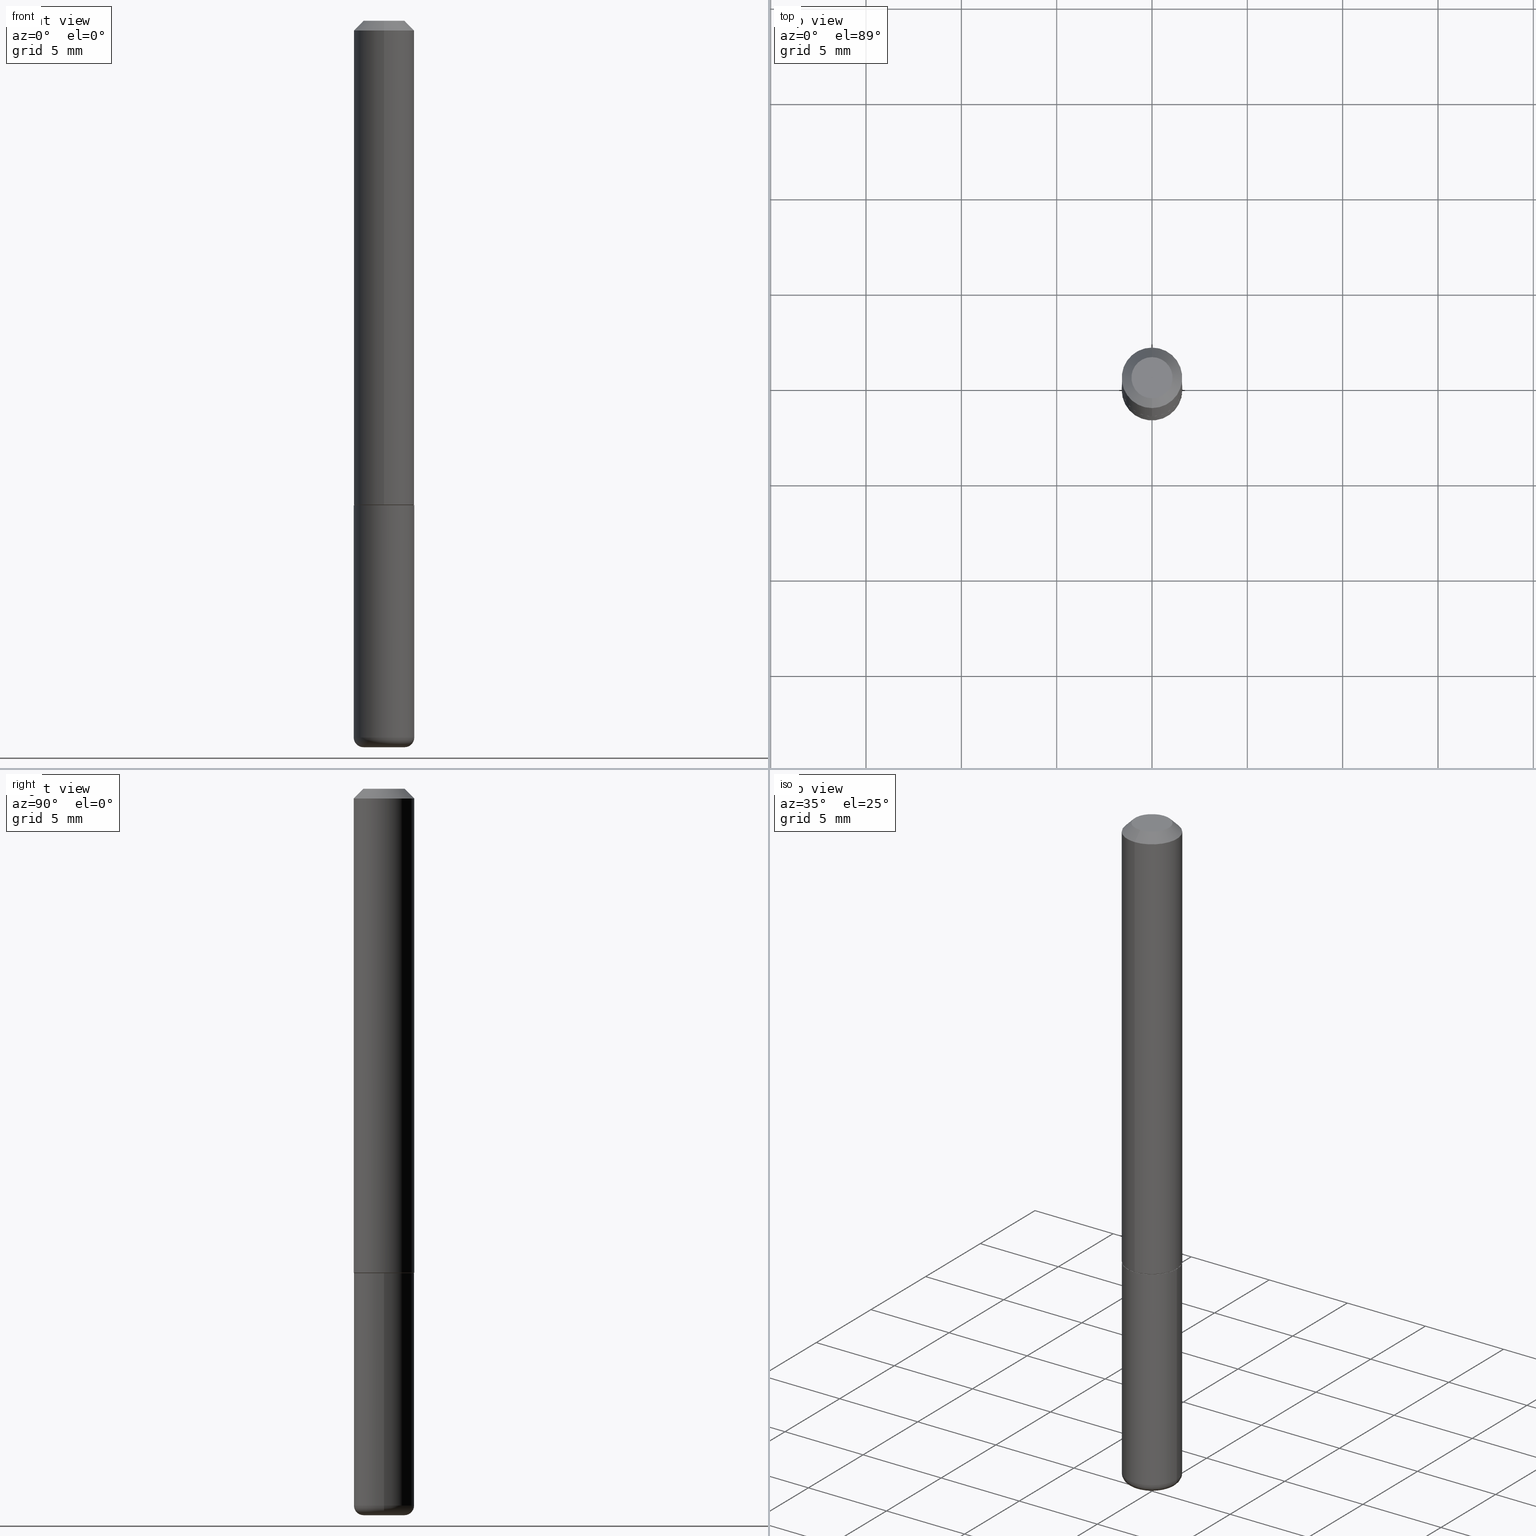
[diagram: canonical four-view strip — front | top / right | iso, engineering-drawing reading convention]
A machine part, canonical four-view strip (front | top / right | iso — engineering-drawing reading convention). The complete STEP part file that produces these views, byte-faithful:
ISO-10303-21;
HEADER;
FILE_DESCRIPTION (( 'STEP AP203' ),
    '1' );
FILE_NAME ('38203.STEP',
    '2024-03-02T18:13:21',
    ( '' ),
    ( '' ),
    'SwSTEP 2.0',
    'SolidWorks 2023',
    '' );
FILE_SCHEMA (( 'CONFIG_CONTROL_DESIGN' ));
ENDSEC;

DATA;
#1 = EDGE_CURVE ( 'NONE', #200, #326, #191, .T. ) ;
#2 = ADVANCED_FACE ( 'NONE', ( #349 ), #384, .F. ) ;
#3 = ORIENTED_EDGE ( 'NONE', *, *, #285, .T. ) ;
#4 = ORIENTED_EDGE ( 'NONE', *, *, #1, .F. ) ;
#5 = CARTESIAN_POINT ( 'NONE',  ( 0.06250000000000001388, -4.364351673553918173E-16, 3.047610484872460571E-30 ) ) ;
#6 = ORIENTED_EDGE ( 'NONE', *, *, #209, .T. ) ;
#7 = EDGE_CURVE ( 'NONE', #206, #258, #208, .T. ) ;
#8 = DIRECTION ( 'NONE',  ( -6.982962677686265922E-15, -1.000000000000000000, 3.551402391763545142E-15 ) ) ;
#9 = DIRECTION ( 'NONE',  ( -2.445468806185136597E-29, 3.491481338843145583E-15, 1.000000000000000000 ) ) ;
#10 =( NAMED_UNIT ( * ) PLANE_ANGLE_UNIT ( ) SI_UNIT ( $, .RADIAN. ) );
#11 = EDGE_LOOP ( 'NONE', ( #392, #325, #314, #395 ) ) ;
#12 = CARTESIAN_POINT ( 'NONE',  ( -4.364351673553682501E-16, -0.06250000000000363598, -0.9989999999999996660 ) ) ;
#13 = AXIS2_PLACEMENT_3D ( 'NONE', #252, #26, #67 ) ;
#14 = PERSON_AND_ORGANIZATION ( #171, #347 ) ;
#15 = APPROVAL ( #341, 'UNSPECIFIED' ) ;
#16 = DIRECTION ( 'NONE',  ( -2.422853900557315141E-29, 3.523867170862678489E-15, 1.000000000000000000 ) ) ;
#17 = AXIS2_PLACEMENT_3D ( 'NONE', #123, #275, #401 ) ;
#18 = CARTESIAN_POINT ( 'NONE',  ( 2.967759138016645800E-16, 0.04249999999999975325, -5.303462480398862614E-17 ) ) ;
#19 = PRODUCT_DEFINITION_SHAPE ( 'NONE', 'NONE',  #130 ) ;
#20 = CARTESIAN_POINT ( 'NONE',  ( 2.445468806185136036E-29, -3.491481338843144399E-15, -0.9999999999999996669 ) ) ;
#21 = CARTESIAN_POINT ( 'NONE',  ( -0.06250000000000001388, 4.440892098500627148E-16, -3.074334431409317165E-30 ) ) ;
#22 = DIRECTION ( 'NONE',  ( 4.937700262164540154E-15, 0.7071067811865440200, -0.7071067811865511255 ) ) ;
#23 = CARTESIAN_POINT ( 'NONE',  ( 4.369837824924861120E-16, 0.06149999999999652273, -1.000000000000000000 ) ) ;
#24 = DATE_AND_TIME ( #107, #58 ) ;
#25 = PERSON_AND_ORGANIZATION_ROLE ( 'creator' ) ;
#26 = DIRECTION ( 'NONE',  ( -2.445468806185136597E-29, 3.491481338843145583E-15, 1.000000000000000000 ) ) ;
#27 = EDGE_CURVE ( 'NONE', #266, #354, #256, .T. ) ;
#28 = CARTESIAN_POINT ( 'NONE',  ( -0.06250000000000001388, -4.723303171637793051E-15, -1.479999999999999982 ) ) ;
#29 = EDGE_LOOP ( 'NONE', ( #112, #71, #359, #292 ) ) ;
#30 = ORIENTED_EDGE ( 'NONE', *, *, #383, .F. ) ;
#31 = CIRCLE ( 'NONE', #127, 0.06150000000000004768 ) ;
#32 = APPLICATION_PROTOCOL_DEFINITION ( 'international standard', 'config_control_design', 1994, #281 ) ;
#33 = EDGE_LOOP ( 'NONE', ( #230, #318, #41, #68 ) ) ;
#34 = PRODUCT_RELATED_PRODUCT_CATEGORY ( 'detail', '', ( #269 ) ) ;
#35 = EDGE_CURVE ( 'NONE', #258, #110, #50, .T. ) ;
#36 = DIMENSIONAL_EXPONENTS ( 1.000000000000000000, 0.000000000000000000, 0.000000000000000000, 0.000000000000000000, 0.000000000000000000, 0.000000000000000000, 0.000000000000000000 ) ;
#37 = CYLINDRICAL_SURFACE ( 'NONE', #265, 0.06250000000000002776 ) ;
#38 = ORIENTED_EDGE ( 'NONE', *, *, #376, .T. ) ;
#39 = APPROVAL_DATE_TIME ( #179, #193 ) ;
#40 = ORIENTED_EDGE ( 'NONE', *, *, #35, .F. ) ;
#41 = ORIENTED_EDGE ( 'NONE', *, *, #320, .F. ) ;
#42 = CC_DESIGN_SECURITY_CLASSIFICATION ( #238, ( #329 ) ) ;
#43 = DIRECTION ( 'NONE',  ( 2.438088387897960049E-29, -3.491481338843145188E-15, -1.000000000000000000 ) ) ;
#44 = FACE_OUTER_BOUND ( 'NONE', #105, .T. ) ;
#45 = DIRECTION ( 'NONE',  ( -2.422853900557315141E-29, 3.523867170862678489E-15, 1.000000000000000000 ) ) ;
#46 = DIRECTION ( 'NONE',  ( -6.982962677686265922E-15, -1.000000000000000000, 3.551402391763545142E-15 ) ) ;
#47 = COORDINATED_UNIVERSAL_TIME_OFFSET ( 5, 0, .BEHIND. ) ;
#48 = DIRECTION ( 'NONE',  ( 2.422853900557314861E-29, -3.523867170862678489E-15, -1.000000000000000000 ) ) ;
#49 = CARTESIAN_POINT ( 'NONE',  ( -0.06250000000000001388, -3.885347650315437417E-15, -0.9999999999999996669 ) ) ;
#50 = CIRCLE ( 'NONE', #174, 0.06250000000000001388 ) ;
#51 = CIRCLE ( 'NONE', #215, 0.06250000000000001388 ) ;
#52 = DIRECTION ( 'NONE',  ( -6.982962677686265922E-15, -1.000000000000000000, 4.442029257990668187E-15 ) ) ;
#53 = APPROVAL ( #315, 'UNSPECIFIED' ) ;
#54 = CARTESIAN_POINT ( 'NONE',  ( 4.845707801114646817E-31, -7.047734341725380940E-17, -0.02000000000000006981 ) ) ;
#55 = LINE ( 'NONE', #59, #339 ) ;
#56 = DIRECTION ( 'NONE',  ( 1.000000000000000000, -6.982962677686276177E-15, 0.000000000000000000 ) ) ;
#57 = AXIS2_PLACEMENT_3D ( 'NONE', #118, #361, #77 ) ;
#58 = LOCAL_TIME ( 13, 13, 21.00000000000000000, #47 ) ;
#59 = CARTESIAN_POINT ( 'NONE',  ( -4.294522046776814963E-16, -0.06150000000000357264, -0.9999999999999994449 ) ) ;
#60 = ADVANCED_BREP_SHAPE_REPRESENTATION ( '38203', ( #378, #244, #195 ), #312 ) ;
#61 = LINE ( 'NONE', #190, #328 ) ;
#62 = PERSON_AND_ORGANIZATION_ROLE ( 'design_owner' ) ;
#63 = DIRECTION ( 'NONE',  ( 1.000000000000000000, -6.982962677686269077E-15, 0.000000000000000000 ) ) ;
#64 = PERSON_AND_ORGANIZATION ( #171, #347 ) ;
#65 = EDGE_CURVE ( 'NONE', #261, #135, #311, .T. ) ;
#66 = VERTEX_POINT ( 'NONE', #146 ) ;
#67 = DIRECTION ( 'NONE',  ( 1.000000000000000000, -6.982962677686258822E-15, 4.883557194083110659E-29 ) ) ;
#68 = ORIENTED_EDGE ( 'NONE', *, *, #352, .F. ) ;
#69 = DIRECTION ( 'NONE',  ( 1.000000000000000000, 0.000000000000000000, 0.000000000000000000 ) ) ;
#70 = EDGE_LOOP ( 'NONE', ( #239, #388, #38, #321 ) ) ;
#71 = ORIENTED_EDGE ( 'NONE', *, *, #1, .T. ) ;
#72 = DIRECTION ( 'NONE',  ( -1.000000000000000000, 6.982962677686265922E-15, -4.876176775795935793E-29 ) ) ;
#73 = CARTESIAN_POINT ( 'NONE',  ( -4.687240070556140497E-45, 6.817254396885214509E-31, 1.934594599153486335E-16 ) ) ;
#74 = EDGE_CURVE ( 'NONE', #135, #261, #136, .T. ) ;
#75 = ORIENTED_EDGE ( 'NONE', *, *, #7, .F. ) ;
#76 = AXIS2_PLACEMENT_3D ( 'NONE', #20, #43, #72 ) ;
#77 = DIRECTION ( 'NONE',  ( -6.982962677686265922E-15, -1.000000000000000000, 4.442029257990668187E-15 ) ) ;
#78 = EDGE_LOOP ( 'NONE', ( #385, #108 ) ) ;
#79 = DIRECTION ( 'NONE',  ( -2.422853900557315141E-29, 3.523867170862678489E-15, 1.000000000000000000 ) ) ;
#80 = ORIENTED_EDGE ( 'NONE', *, *, #65, .T. ) ;
#81 = DIRECTION ( 'NONE',  ( -2.445468806185136877E-29, 3.491481338843145188E-15, 1.000000000000000000 ) ) ;
#82 = AXIS2_PLACEMENT_3D ( 'NONE', #223, #284, #84 ) ;
#83 = PERSON_AND_ORGANIZATION ( #171, #347 ) ;
#84 = DIRECTION ( 'NONE',  ( -6.982962677686265133E-15, -1.000000000000000000, 4.370956789862812472E-15 ) ) ;
#85 = CC_DESIGN_PERSON_AND_ORGANIZATION_ASSIGNMENT ( #407, #346, ( #238 ) ) ;
#86 = AXIS2_PLACEMENT_3D ( 'NONE', #73, #168, #201 ) ;
#87 = FACE_OUTER_BOUND ( 'NONE', #78, .T. ) ;
#88 = DIRECTION ( 'NONE',  ( -2.422853900557315141E-29, 3.523867170862678489E-15, 1.000000000000000000 ) ) ;
#89 = ADVANCED_FACE ( 'NONE', ( #272 ), #287, .T. ) ;
#90 = EDGE_CURVE ( 'NONE', #66, #206, #109, .T. ) ;
#91 = FACE_OUTER_BOUND ( 'NONE', #317, .T. ) ;
#92 = ORIENTED_EDGE ( 'NONE', *, *, #27, .T. ) ;
#93 = CIRCLE ( 'NONE', #57, 0.06150000000000004768 ) ;
#94 = DIRECTION ( 'NONE',  ( -2.422853900557314861E-29, 3.523867170862678489E-15, 1.000000000000000000 ) ) ;
#95 = APPROVAL_ROLE ( '' ) ;
#96 = DIRECTION ( 'NONE',  ( 5.024295867788748699E-15, 0.7071067811866466046, 0.7071067811864484298 ) ) ;
#97 = COORDINATED_UNIVERSAL_TIME_OFFSET ( 5, 0, .BEHIND. ) ;
#98 = DATE_AND_TIME ( #159, #398 ) ;
#99 = ADVANCED_FACE ( 'NONE', ( #247 ), #243, .T. ) ;
#100 = DIRECTION ( 'NONE',  ( 1.000000000000000000, -6.982962677686258822E-15, 4.883557194083110659E-29 ) ) ;
#101 = CIRCLE ( 'NONE', #82, 0.06250000000000012490 ) ;
#102 = AXIS2_PLACEMENT_3D ( 'NONE', #54, #187, #151 ) ;
#103 = ORIENTED_EDGE ( 'NONE', *, *, #276, .T. ) ;
#104 = DIRECTION ( 'NONE',  ( 0.000000000000000000, 0.000000000000000000, 1.000000000000000000 ) ) ;
#105 = EDGE_LOOP ( 'NONE', ( #228, #403, #381, #202 ) ) ;
#106 = CC_DESIGN_PERSON_AND_ORGANIZATION_ASSIGNMENT ( #343, #62, ( #269 ) ) ;
#107 = CALENDAR_DATE ( 2024, 2, 3 ) ;
#108 = ORIENTED_EDGE ( 'NONE', *, *, #360, .T. ) ;
#109 = CIRCLE ( 'NONE', #158, 0.04249999999999999611 ) ;
#110 = VERTEX_POINT ( 'NONE', #368 ) ;
#111 = VECTOR ( 'NONE', #221, 39.37007874015748143 ) ;
#112 = ORIENTED_EDGE ( 'NONE', *, *, #222, .T. ) ;
#113 = ORIENTED_EDGE ( 'NONE', *, *, #351, .F. ) ;
#114 = ADVANCED_FACE ( 'NONE', ( #180 ), #357, .T. ) ;
#115 = COORDINATED_UNIVERSAL_TIME_OFFSET ( 5, 0, .BEHIND. ) ;
#116 = CONICAL_SURFACE ( 'NONE', #227, 0.06150000000000004768, 0.7853981633975849475 ) ;
#117 = LOCAL_TIME ( 13, 13, 21.00000000000000000, #390 ) ;
#118 = CARTESIAN_POINT ( 'NONE',  ( 2.422853900557314300E-29, -3.523867170862677700E-15, -0.9999999999999996669 ) ) ;
#119 = CALENDAR_DATE ( 2024, 2, 3 ) ;
#120 = DIRECTION ( 'NONE',  ( 6.982962677686265922E-15, 1.000000000000000000, -3.523867170862678489E-15 ) ) ;
#121 = DIRECTION ( 'NONE',  ( -4.937700262165222518E-15, -0.7071067811866417196, 0.7071067811864533148 ) ) ;
#122 = PLANE ( 'NONE',  #76 ) ;
#123 = CARTESIAN_POINT ( 'NONE',  ( 0.000000000000000000, 0.000000000000000000, 0.000000000000000000 ) ) ;
#124 = DIRECTION ( 'NONE',  ( -6.982962677686265922E-15, -1.000000000000000000, 3.523867170862678095E-15 ) ) ;
#125 = EDGE_CURVE ( 'NONE', #200, #169, #31, .T. ) ;
#126 = CARTESIAN_POINT ( 'NONE',  ( -4.287811248607198352E-16, -0.06250000000000001388, -0.01999999999999984776 ) ) ;
#127 = AXIS2_PLACEMENT_3D ( 'NONE', #370, #16, #52 ) ;
#128 = DIRECTION ( 'NONE',  ( -2.445468806185136597E-29, 3.491481338843145583E-15, 1.000000000000000000 ) ) ;
#129 =( NAMED_UNIT ( * ) SI_UNIT ( $, .STERADIAN. ) SOLID_ANGLE_UNIT ( ) );
#130 = PRODUCT_DEFINITION ( 'UNKNOWN', '', #329, #210 ) ;
#131 = PERSON_AND_ORGANIZATION ( #171, #347 ) ;
#132 = CARTESIAN_POINT ( 'NONE',  ( -4.364351673553918666E-16, -0.06250000000000002776, 2.202416981789175288E-16 ) ) ;
#133 = AXIS2_PLACEMENT_3D ( 'NONE', #274, #45, #267 ) ;
#134 = MECHANICAL_CONTEXT ( 'NONE', #281, 'mechanical' ) ;
#135 = VERTEX_POINT ( 'NONE', #279 ) ;
#136 = CIRCLE ( 'NONE', #282, 0.06249999999999995143 ) ;
#137 = AXIS2_PLACEMENT_3D ( 'NONE', #226, #289, #197 ) ;
#138 = LOCAL_TIME ( 13, 13, 21.00000000000000000, #97 ) ;
#139 = DIRECTION ( 'NONE',  ( 1.000000000000000000, -6.982962677686267499E-15, 4.876176775795935793E-29 ) ) ;
#140 = ADVANCED_FACE ( 'NONE', ( #44 ), #405, .T. ) ;
#141 = PERSON_AND_ORGANIZATION_ROLE ( 'creator' ) ;
#142 = CARTESIAN_POINT ( 'NONE',  ( -4.287811248607198352E-16, -0.06250000000000001388, -0.01999999999999984776 ) ) ;
#143 = CIRCLE ( 'NONE', #391, 0.02000000000000003511 ) ;
#144 = CC_DESIGN_PERSON_AND_ORGANIZATION_ASSIGNMENT ( #131, #25, ( #130 ) ) ;
#145 = ADVANCED_FACE ( 'NONE', ( #298 ), #363, .T. ) ;
#146 = CARTESIAN_POINT ( 'NONE',  ( 0.04249999999999999611, -5.533997922066385616E-15, -1.500000000000000222 ) ) ;
#147 = DIRECTION ( 'NONE',  ( -2.445468806185136597E-29, 3.491481338843145583E-15, 1.000000000000000000 ) ) ;
#148 = PERSON_AND_ORGANIZATION ( #171, #347 ) ;
#149 = DATE_AND_TIME ( #241, #117 ) ;
#150 = ORIENTED_EDGE ( 'NONE', *, *, #65, .F. ) ;
#151 = DIRECTION ( 'NONE',  ( 6.982962677686265922E-15, 1.000000000000000000, -3.551402391763545142E-15 ) ) ;
#152 = CC_DESIGN_APPROVAL ( #53, ( #329 ) ) ;
#153 = CC_DESIGN_PERSON_AND_ORGANIZATION_ASSIGNMENT ( #148, #141, ( #329 ) ) ;
#154 = CARTESIAN_POINT ( 'NONE',  ( -4.294522046776814963E-16, -0.06150000000000357264, -0.9999999999999994449 ) ) ;
#155 = FACE_OUTER_BOUND ( 'NONE', #33, .T. ) ;
#156 = EDGE_CURVE ( 'NONE', #290, #362, #251, .T. ) ;
#157 = EDGE_CURVE ( 'NONE', #258, #362, #409, .T. ) ;
#158 = AXIS2_PLACEMENT_3D ( 'NONE', #245, #302, #56 ) ;
#159 = CALENDAR_DATE ( 2024, 2, 3 ) ;
#160 = CARTESIAN_POINT ( 'NONE',  ( 2.422853900557314300E-29, -3.523867170862677700E-15, -0.9999999999999996669 ) ) ;
#161 = DIRECTION ( 'NONE',  ( -2.422853900557315141E-29, 3.523867170862678489E-15, 1.000000000000000000 ) ) ;
#162 = FACE_OUTER_BOUND ( 'NONE', #70, .T. ) ;
#163 = ORIENTED_EDGE ( 'NONE', *, *, #165, .F. ) ;
#164 = CARTESIAN_POINT ( 'NONE',  ( -0.04249999999999999611, -4.865411718789812426E-15, -1.479999999999999982 ) ) ;
#165 = EDGE_CURVE ( 'NONE', #266, #135, #61, .T. ) ;
#166 = AXIS2_PLACEMENT_3D ( 'NONE', #336, #188, #280 ) ;
#167 = EDGE_LOOP ( 'NONE', ( #6, #356, #150, #259 ) ) ;
#168 = DIRECTION ( 'NONE',  ( -2.422853900557315141E-29, 3.523867170862678489E-15, 1.000000000000000000 ) ) ;
#169 = VERTEX_POINT ( 'NONE', #154 ) ;
#170 = CARTESIAN_POINT ( 'NONE',  ( 0.000000000000000000, 0.000000000000000000, 0.000000000000000000 ) ) ;
#171 = PERSON ( 'UNSPECIFIED', 'UNSPECIFIED', 'UNSPECIFIED', ('UNSPECIFIED'), ('UNSPECIFIED'), ('UNSPECIFIED') ) ;
#172 = EDGE_LOOP ( 'NONE', ( #4, #264, #3, #389 ) ) ;
#173 = SHAPE_DEFINITION_REPRESENTATION ( #19, #60 ) ;
#174 = AXIS2_PLACEMENT_3D ( 'NONE', #418, #324, #294 ) ;
#175 = ORIENTED_EDGE ( 'NONE', *, *, #276, .F. ) ;
#176 = APPROVAL_PERSON_ORGANIZATION ( #83, #15, #95 ) ;
#177 = CC_DESIGN_APPROVAL ( #193, ( #238 ) ) ;
#178 = LINE ( 'NONE', #396, #327 ) ;
#179 = DATE_AND_TIME ( #119, #295 ) ;
#180 = FACE_OUTER_BOUND ( 'NONE', #342, .T. ) ;
#181 = ADVANCED_FACE ( 'NONE', ( #319 ), #355, .T. ) ;
#182 = DIRECTION ( 'NONE',  ( -2.422853900557315141E-29, 3.523867170862678489E-15, 1.000000000000000000 ) ) ;
#183 = CLOSED_SHELL ( 'NONE', ( #181, #371, #204, #140, #145, #337 ) ) ;
#184 = VECTOR ( 'NONE', #81, 39.37007874015748143 ) ;
#185 = APPROVAL_PERSON_ORGANIZATION ( #14, #193, #304 ) ;
#186 = CARTESIAN_POINT ( 'NONE',  ( 0.06250000000000001388, -3.927916506198536858E-15, -0.9999999999999996669 ) ) ;
#187 = DIRECTION ( 'NONE',  ( 2.422853900557315141E-29, -3.523867170862678489E-15, -1.000000000000000000 ) ) ;
#188 = DIRECTION ( 'NONE',  ( 2.438088387897960049E-29, -3.491481338843145188E-15, -1.000000000000000000 ) ) ;
#189 = AXIS2_PLACEMENT_3D ( 'NONE', #250, #254, #100 ) ;
#190 = CARTESIAN_POINT ( 'NONE',  ( 4.364351673553917187E-16, 0.06249999999999988204, -0.02000000000000029185 ) ) ;
#191 = LINE ( 'NONE', #23, #380 ) ;
#192 = CARTESIAN_POINT ( 'NONE',  ( -0.04249999999999999611, -4.829272258602233993E-15, -1.500000000000000222 ) ) ;
#193 = APPROVAL ( #334, 'UNSPECIFIED' ) ;
#194 = APPLICATION_PROTOCOL_DEFINITION ( 'international standard', 'config_control_design', 1994, #313 ) ;
#195 = AXIS2_PLACEMENT_3D ( 'NONE', #205, #104, #69 ) ;
#196 = DIRECTION ( 'NONE',  ( -1.000000000000000000, 7.105427357601009747E-15, 0.000000000000000000 ) ) ;
#197 = DIRECTION ( 'NONE',  ( -6.982962677686265133E-15, -1.000000000000000000, 4.370956789862812472E-15 ) ) ;
#198 = EDGE_LOOP ( 'NONE', ( #393, #212 ) ) ;
#199 = TOROIDAL_SURFACE ( 'NONE', #13, 0.04249999999999999611, 0.02000000000000003511 ) ;
#200 = VERTEX_POINT ( 'NONE', #268 ) ;
#201 = DIRECTION ( 'NONE',  ( -6.982962677686265922E-15, -1.000000000000000000, 3.523867170862678095E-15 ) ) ;
#202 = ORIENTED_EDGE ( 'NONE', *, *, #360, .F. ) ;
#203 = ADVANCED_FACE ( 'NONE', ( #394 ), #308, .F. ) ;
#204 = ADVANCED_FACE ( 'NONE', ( #87 ), #122, .F. ) ;
#205 = CARTESIAN_POINT ( 'NONE',  ( 0.000000000000000000, 0.000000000000000000, 0.000000000000000000 ) ) ;
#206 = VERTEX_POINT ( 'NONE', #192 ) ;
#207 = APPROVAL_DATE_TIME ( #98, #53 ) ;
#208 = CIRCLE ( 'NONE', #231, 0.02000000000000003511 ) ;
#209 = EDGE_CURVE ( 'NONE', #415, #326, #101, .T. ) ;
#210 = DESIGN_CONTEXT ( 'detailed design', #313, 'design' ) ;
#211 = SECURITY_CLASSIFICATION_LEVEL ( 'unclassified' ) ;
#212 = ORIENTED_EDGE ( 'NONE', *, *, #125, .F. ) ;
#213 = DIRECTION ( 'NONE',  ( -2.422853900557315141E-29, 3.523867170862678489E-15, 1.000000000000000000 ) ) ;
#214 = CARTESIAN_POINT ( 'NONE',  ( 2.422853900557314300E-29, -3.523867170862677700E-15, -0.9999999999999996669 ) ) ;
#215 = AXIS2_PLACEMENT_3D ( 'NONE', #277, #147, #271 ) ;
#216 = DATE_TIME_ROLE ( 'classification_date' ) ;
#217 = ADVANCED_FACE ( 'NONE', ( #330 ), #236, .T. ) ;
#218 = CARTESIAN_POINT ( 'NONE',  ( -3.601761448830040600E-16, -0.04249999999999975325, 3.432238146770115888E-16 ) ) ;
#219 = FACE_OUTER_BOUND ( 'NONE', #172, .T. ) ;
#220 = AXIS2_PLACEMENT_3D ( 'NONE', #306, #182, #124 ) ;
#221 = DIRECTION ( 'NONE',  ( -2.422853900557315141E-29, 3.523867170862678489E-15, 1.000000000000000000 ) ) ;
#222 = EDGE_CURVE ( 'NONE', #169, #200, #93, .T. ) ;
#223 = CARTESIAN_POINT ( 'NONE',  ( 2.420431046656757310E-29, -3.520343303691815911E-15, -0.9989999999999998881 ) ) ;
#224 = DIRECTION ( 'NONE',  ( -2.422853900557315141E-29, 3.523867170862678489E-15, 1.000000000000000000 ) ) ;
#225 = CARTESIAN_POINT ( 'NONE',  ( 2.422853900557314300E-29, -3.523867170862677700E-15, -0.9999999999999996669 ) ) ;
#226 = CARTESIAN_POINT ( 'NONE',  ( 2.420431046656757310E-29, -3.520343303691815911E-15, -0.9989999999999998881 ) ) ;
#227 = AXIS2_PLACEMENT_3D ( 'NONE', #160, #224, #316 ) ;
#228 = ORIENTED_EDGE ( 'NONE', *, *, #157, .F. ) ;
#229 = EDGE_CURVE ( 'NONE', #110, #290, #296, .T. ) ;
#230 = ORIENTED_EDGE ( 'NONE', *, *, #90, .T. ) ;
#231 = AXIS2_PLACEMENT_3D ( 'NONE', #164, #345, #196 ) ;
#232 = VECTOR ( 'NONE', #399, 39.37007874015748854 ) ;
#233 = ORIENTED_EDGE ( 'NONE', *, *, #165, .T. ) ;
#234 = DIRECTION ( 'NONE',  ( -2.445468806185136597E-29, 3.491481338843145583E-15, 1.000000000000000000 ) ) ;
#235 = CARTESIAN_POINT ( 'NONE',  ( 4.845707801114646817E-31, -7.047734341725380940E-17, -0.02000000000000006981 ) ) ;
#236 = CYLINDRICAL_SURFACE ( 'NONE', #133, 0.06250000000000002776 ) ;
#237 = EDGE_CURVE ( 'NONE', #326, #135, #178, .T. ) ;
#238 = SECURITY_CLASSIFICATION ( '', '', #211 ) ;
#239 = ORIENTED_EDGE ( 'NONE', *, *, #237, .F. ) ;
#240 = DIRECTION ( 'NONE',  ( 6.982962677686265922E-15, 1.000000000000000000, -3.551402391763545142E-15 ) ) ;
#241 = CALENDAR_DATE ( 2024, 2, 3 ) ;
#242 = ADVANCED_FACE ( 'NONE', ( #219 ), #116, .T. ) ;
#243 = CONICAL_SURFACE ( 'NONE', #382, 0.06249999999999995143, 0.7853981633974467247 ) ;
#244 = MANIFOLD_SOLID_BREP ( 'Body-Move/Copy2[2]', #303 ) ;
#245 = CARTESIAN_POINT ( 'NONE',  ( 3.668203209277704895E-29, -5.237222008264718177E-15, -1.500000000000000222 ) ) ;
#246 = CARTESIAN_POINT ( 'NONE',  ( 4.440892098500754352E-16, 0.06249999999999659994, -0.9990000000000002212 ) ) ;
#247 = FACE_OUTER_BOUND ( 'NONE', #387, .T. ) ;
#248 = CARTESIAN_POINT ( 'NONE',  ( 0.04249999999999999611, -5.464168295289522318E-15, -1.479999999999999982 ) ) ;
#249 = EDGE_CURVE ( 'NONE', #326, #415, #412, .T. ) ;
#250 = CARTESIAN_POINT ( 'NONE',  ( 3.619293833154002365E-29, -5.167392381487854879E-15, -1.479999999999999982 ) ) ;
#251 = CIRCLE ( 'NONE', #414, 0.06250000000000001388 ) ;
#252 = CARTESIAN_POINT ( 'NONE',  ( 3.619293833154002365E-29, -5.167392381487854879E-15, -1.479999999999999982 ) ) ;
#253 = DIRECTION ( 'NONE',  ( -2.445468806185136597E-29, 3.491481338843145583E-15, 1.000000000000000000 ) ) ;
#254 = DIRECTION ( 'NONE',  ( -2.445468806185136597E-29, 3.491481338843145583E-15, 1.000000000000000000 ) ) ;
#255 = APPROVAL_DATE_TIME ( #24, #15 ) ;
#256 = CIRCLE ( 'NONE', #86, 0.04249999999999975325 ) ;
#257 = VECTOR ( 'NONE', #373, 39.37007874015748143 ) ;
#258 = VERTEX_POINT ( 'NONE', #28 ) ;
#259 = ORIENTED_EDGE ( 'NONE', *, *, #376, .F. ) ;
#260 = ORIENTED_EDGE ( 'NONE', *, *, #383, .T. ) ;
#261 = VERTEX_POINT ( 'NONE', #126 ) ;
#262 = CARTESIAN_POINT ( 'NONE',  ( 0.000000000000000000, 0.000000000000000000, 0.000000000000000000 ) ) ;
#263 = CC_DESIGN_PERSON_AND_ORGANIZATION_ASSIGNMENT ( #300, #364, ( #329 ) ) ;
#264 = ORIENTED_EDGE ( 'NONE', *, *, #125, .T. ) ;
#265 = AXIS2_PLACEMENT_3D ( 'NONE', #170, #161, #301 ) ;
#266 = VERTEX_POINT ( 'NONE', #372 ) ;
#267 = DIRECTION ( 'NONE',  ( -6.982962677686266711E-15, -1.000000000000000000, 3.523867170862678884E-15 ) ) ;
#268 = CARTESIAN_POINT ( 'NONE',  ( 4.405364961712868626E-16, 0.06149999999999652273, -1.000000000000000000 ) ) ;
#269 = PRODUCT ( '38203', '38203', '', ( #134 ) ) ;
#270 = DIRECTION ( 'NONE',  ( -6.982962677686265922E-15, -1.000000000000000000, 4.442029257990668187E-15 ) ) ;
#271 = DIRECTION ( 'NONE',  ( 1.000000000000000000, -6.982962677686261189E-15, 0.000000000000000000 ) ) ;
#272 = FACE_OUTER_BOUND ( 'NONE', #29, .T. ) ;
#273 = DIRECTION ( 'NONE',  ( 1.000000000000000000, -6.982962677686272233E-15, 0.000000000000000000 ) ) ;
#274 = CARTESIAN_POINT ( 'NONE',  ( 0.000000000000000000, 0.000000000000000000, 0.000000000000000000 ) ) ;
#275 = DIRECTION ( 'NONE',  ( -2.445468806185136597E-29, 3.491481338843145583E-15, 1.000000000000000000 ) ) ;
#276 = EDGE_CURVE ( 'NONE', #354, #261, #333, .T. ) ;
#277 = CARTESIAN_POINT ( 'NONE',  ( 3.619293833154002365E-29, -5.167392381487854879E-15, -1.479999999999999982 ) ) ;
#278 = CIRCLE ( 'NONE', #332, 0.04249999999999999611 ) ;
#279 = CARTESIAN_POINT ( 'NONE',  ( 4.364351673553917187E-16, 0.06249999999999988204, -0.02000000000000029185 ) ) ;
#280 = DIRECTION ( 'NONE',  ( -1.000000000000000000, 6.982962677686265922E-15, -4.876176775795935793E-29 ) ) ;
#281 = APPLICATION_CONTEXT ( 'configuration controlled 3d designs of mechanical parts and assemblies' ) ;
#282 = AXIS2_PLACEMENT_3D ( 'NONE', #335, #213, #46 ) ;
#283 = AXIS2_PLACEMENT_3D ( 'NONE', #299, #9, #331 ) ;
#284 = DIRECTION ( 'NONE',  ( -2.422853900557315141E-29, 3.523867170862678489E-15, 1.000000000000000000 ) ) ;
#285 = EDGE_CURVE ( 'NONE', #169, #415, #55, .T. ) ;
#286 = LINE ( 'NONE', #132, #111 ) ;
#287 = CONICAL_SURFACE ( 'NONE', #338, 0.06150000000000004768, 0.7853981633975849475 ) ;
#288 = AXIS2_PLACEMENT_3D ( 'NONE', #262, #234, #139 ) ;
#289 = DIRECTION ( 'NONE',  ( -2.422853900557315141E-29, 3.523867170862678489E-15, 1.000000000000000000 ) ) ;
#290 = VERTEX_POINT ( 'NONE', #186 ) ;
#291 =( CONVERSION_BASED_UNIT ( 'INCH', #353 ) LENGTH_UNIT ( ) NAMED_UNIT ( #36 ) );
#292 = ORIENTED_EDGE ( 'NONE', *, *, #285, .F. ) ;
#293 = ORIENTED_EDGE ( 'NONE', *, *, #352, .T. ) ;
#294 = DIRECTION ( 'NONE',  ( 1.000000000000000000, -6.982962677686261189E-15, 0.000000000000000000 ) ) ;
#295 = LOCAL_TIME ( 13, 13, 21.00000000000000000, #115 ) ;
#296 = LINE ( 'NONE', #5, #184 ) ;
#297 = DIRECTION ( 'NONE',  ( -2.422853900557315141E-29, 3.523867170862678489E-15, 1.000000000000000000 ) ) ;
#298 = FACE_OUTER_BOUND ( 'NONE', #365, .T. ) ;
#299 = CARTESIAN_POINT ( 'NONE',  ( 2.445468806185136036E-29, -3.491481338843144399E-15, -0.9999999999999996669 ) ) ;
#300 = PERSON_AND_ORGANIZATION ( #171, #347 ) ;
#301 = DIRECTION ( 'NONE',  ( -6.982962677686266711E-15, -1.000000000000000000, 3.523867170862678884E-15 ) ) ;
#302 = DIRECTION ( 'NONE',  ( -2.445468806185136597E-29, 3.491481338843145583E-15, 1.000000000000000000 ) ) ;
#303 = CLOSED_SHELL ( 'NONE', ( #89, #217, #114, #99, #408, #242, #2, #203 ) ) ;
#304 = APPROVAL_ROLE ( '' ) ;
#305 = DIRECTION ( 'NONE',  ( 2.422853900557315141E-29, -3.523867170862678489E-15, -1.000000000000000000 ) ) ;
#306 = CARTESIAN_POINT ( 'NONE',  ( -4.687240070556140497E-45, 6.817254396885214509E-31, 1.934594599153486335E-16 ) ) ;
#307 = AXIS2_PLACEMENT_3D ( 'NONE', #235, #79, #8 ) ;
#308 = PLANE ( 'NONE',  #404 ) ;
#309 = DIRECTION ( 'NONE',  ( 1.000000000000000000, -6.982962677686276177E-15, 0.000000000000000000 ) ) ;
#310 = APPROVAL_ROLE ( '' ) ;
#311 = CIRCLE ( 'NONE', #307, 0.06249999999999995143 ) ;
#312 =( GEOMETRIC_REPRESENTATION_CONTEXT ( 3 ) GLOBAL_UNCERTAINTY_ASSIGNED_CONTEXT ( ( #402 ) ) GLOBAL_UNIT_ASSIGNED_CONTEXT ( ( #291, #10, #129 ) ) REPRESENTATION_CONTEXT ( 'NONE', 'WORKASPACE' ) );
#313 = APPLICATION_CONTEXT ( 'configuration controlled 3d designs of mechanical parts and assemblies' ) ;
#314 = ORIENTED_EDGE ( 'NONE', *, *, #156, .F. ) ;
#315 = APPROVAL_STATUS ( 'not_yet_approved' ) ;
#316 = DIRECTION ( 'NONE',  ( -6.982962677686265922E-15, -1.000000000000000000, 4.442029257990668187E-15 ) ) ;
#317 = EDGE_LOOP ( 'NONE', ( #413, #30 ) ) ;
#318 = ORIENTED_EDGE ( 'NONE', *, *, #7, .T. ) ;
#319 = FACE_OUTER_BOUND ( 'NONE', #11, .T. ) ;
#320 = EDGE_CURVE ( 'NONE', #110, #258, #51, .T. ) ;
#321 = ORIENTED_EDGE ( 'NONE', *, *, #74, .F. ) ;
#322 = ORIENTED_EDGE ( 'NONE', *, *, #27, .F. ) ;
#323 = CALENDAR_DATE ( 2024, 2, 3 ) ;
#324 = DIRECTION ( 'NONE',  ( -2.445468806185136597E-29, 3.491481338843145583E-15, 1.000000000000000000 ) ) ;
#325 = ORIENTED_EDGE ( 'NONE', *, *, #157, .T. ) ;
#326 = VERTEX_POINT ( 'NONE', #246 ) ;
#327 = VECTOR ( 'NONE', #297, 39.37007874015748143 ) ;
#328 = VECTOR ( 'NONE', #22, 39.37007874015748143 ) ;
#329 = PRODUCT_DEFINITION_FORMATION_WITH_SPECIFIED_SOURCE ( 'ANY', '', #269, .NOT_KNOWN. ) ;
#330 = FACE_OUTER_BOUND ( 'NONE', #167, .T. ) ;
#331 = DIRECTION ( 'NONE',  ( 1.000000000000000000, -6.982962677686269077E-15, 0.000000000000000000 ) ) ;
#332 = AXIS2_PLACEMENT_3D ( 'NONE', #410, #128, #309 ) ;
#333 = LINE ( 'NONE', #142, #232 ) ;
#334 = APPROVAL_STATUS ( 'not_yet_approved' ) ;
#335 = CARTESIAN_POINT ( 'NONE',  ( 4.845707801114646817E-31, -7.047734341725380940E-17, -0.02000000000000006981 ) ) ;
#336 = CARTESIAN_POINT ( 'NONE',  ( -3.064641231029184976E-29, -1.487903845649145747E-14, -1.499999999999999778 ) ) ;
#337 = ADVANCED_FACE ( 'NONE', ( #91 ), #406, .T. ) ;
#338 = AXIS2_PLACEMENT_3D ( 'NONE', #214, #88, #270 ) ;
#339 = VECTOR ( 'NONE', #121, 39.37007874015748143 ) ;
#340 = APPROVAL_PERSON_ORGANIZATION ( #64, #53, #310 ) ;
#341 = APPROVAL_STATUS ( 'not_yet_approved' ) ;
#342 = EDGE_LOOP ( 'NONE', ( #113, #103, #80, #163 ) ) ;
#343 = PERSON_AND_ORGANIZATION ( #171, #347 ) ;
#344 = DATE_TIME_ROLE ( 'creation_date' ) ;
#345 = DIRECTION ( 'NONE',  ( 7.105427357601001859E-15, 1.000000000000000000, -3.491481338843145583E-15 ) ) ;
#346 = PERSON_AND_ORGANIZATION_ROLE ( 'classification_officer' ) ;
#347 = ORGANIZATION ( 'UNSPECIFIED', 'UNSPECIFIED', '' ) ;
#348 = CC_DESIGN_APPROVAL ( #15, ( #130 ) ) ;
#349 = FACE_OUTER_BOUND ( 'NONE', #198, .T. ) ;
#350 = COORDINATED_UNIVERSAL_TIME_OFFSET ( 5, 0, .BEHIND. ) ;
#351 = EDGE_CURVE ( 'NONE', #354, #266, #397, .T. ) ;
#352 = EDGE_CURVE ( 'NONE', #66, #110, #143, .T. ) ;
#353 = LENGTH_MEASURE_WITH_UNIT ( LENGTH_MEASURE( 0.02539999999999999897 ), #417 );
#354 = VERTEX_POINT ( 'NONE', #218 ) ;
#355 = CYLINDRICAL_SURFACE ( 'NONE', #288, 0.06250000000000001388 ) ;
#356 = ORIENTED_EDGE ( 'NONE', *, *, #237, .T. ) ;
#357 = CONICAL_SURFACE ( 'NONE', #102, 0.06249999999999995143, 0.7853981633974467247 ) ;
#358 = ORIENTED_EDGE ( 'NONE', *, *, #351, .T. ) ;
#359 = ORIENTED_EDGE ( 'NONE', *, *, #209, .F. ) ;
#360 = EDGE_CURVE ( 'NONE', #362, #290, #374, .T. ) ;
#361 = DIRECTION ( 'NONE',  ( -2.422853900557315141E-29, 3.523867170862678489E-15, 1.000000000000000000 ) ) ;
#362 = VERTEX_POINT ( 'NONE', #49 ) ;
#363 = TOROIDAL_SURFACE ( 'NONE', #189, 0.04249999999999999611, 0.02000000000000003511 ) ;
#364 = PERSON_AND_ORGANIZATION_ROLE ( 'design_supplier' ) ;
#365 = EDGE_LOOP ( 'NONE', ( #75, #260, #293, #40 ) ) ;
#366 = CC_DESIGN_DATE_AND_TIME_ASSIGNMENT ( #377, #344, ( #130 ) ) ;
#367 = DIRECTION ( 'NONE',  ( -6.982962677686266711E-15, -1.000000000000000000, 3.491481338843145583E-15 ) ) ;
#368 = CARTESIAN_POINT ( 'NONE',  ( 0.06250000000000001388, -5.603827548843246548E-15, -1.479999999999999982 ) ) ;
#369 = CARTESIAN_POINT ( 'NONE',  ( 2.445468806185136036E-29, -3.491481338843144399E-15, -0.9999999999999996669 ) ) ;
#370 = CARTESIAN_POINT ( 'NONE',  ( 2.422853900557314300E-29, -3.523867170862677700E-15, -0.9999999999999996669 ) ) ;
#371 = ADVANCED_FACE ( 'NONE', ( #155 ), #199, .T. ) ;
#372 = CARTESIAN_POINT ( 'NONE',  ( 3.666055405785281740E-16, 0.04249999999999975325, 4.369510515368569678E-17 ) ) ;
#373 = DIRECTION ( 'NONE',  ( -2.445468806185136877E-29, 3.491481338843145188E-15, 1.000000000000000000 ) ) ;
#374 = CIRCLE ( 'NONE', #283, 0.06250000000000001388 ) ;
#375 = CC_DESIGN_DATE_AND_TIME_ASSIGNMENT ( #149, #216, ( #238 ) ) ;
#376 = EDGE_CURVE ( 'NONE', #415, #261, #286, .T. ) ;
#377 = DATE_AND_TIME ( #323, #138 ) ;
#378 = MANIFOLD_SOLID_BREP ( 'Body-Move/Copy2[1]', #183 ) ;
#379 = DIRECTION ( 'NONE',  ( -6.982962677686265922E-15, -1.000000000000000000, 3.523867170862678489E-15 ) ) ;
#380 = VECTOR ( 'NONE', #96, 39.37007874015748143 ) ;
#381 = ORIENTED_EDGE ( 'NONE', *, *, #229, .T. ) ;
#382 = AXIS2_PLACEMENT_3D ( 'NONE', #400, #305, #240 ) ;
#383 = EDGE_CURVE ( 'NONE', #206, #66, #278, .T. ) ;
#384 = PLANE ( 'NONE',  #411 ) ;
#385 = ORIENTED_EDGE ( 'NONE', *, *, #156, .T. ) ;
#386 = ORIENTED_EDGE ( 'NONE', *, *, #74, .T. ) ;
#387 = EDGE_LOOP ( 'NONE', ( #175, #322, #233, #386 ) ) ;
#388 = ORIENTED_EDGE ( 'NONE', *, *, #249, .T. ) ;
#389 = ORIENTED_EDGE ( 'NONE', *, *, #249, .F. ) ;
#390 = COORDINATED_UNIVERSAL_TIME_OFFSET ( 5, 0, .BEHIND. ) ;
#391 = AXIS2_PLACEMENT_3D ( 'NONE', #248, #367, #273 ) ;
#392 = ORIENTED_EDGE ( 'NONE', *, *, #320, .T. ) ;
#393 = ORIENTED_EDGE ( 'NONE', *, *, #222, .F. ) ;
#394 = FACE_OUTER_BOUND ( 'NONE', #416, .T. ) ;
#395 = ORIENTED_EDGE ( 'NONE', *, *, #229, .F. ) ;
#396 = CARTESIAN_POINT ( 'NONE',  ( 4.440892098500628134E-16, 0.06250000000000002776, -2.202416981789175288E-16 ) ) ;
#397 = CIRCLE ( 'NONE', #220, 0.04249999999999975325 ) ;
#398 = LOCAL_TIME ( 13, 13, 21.00000000000000000, #350 ) ;
#399 = DIRECTION ( 'NONE',  ( -4.851104656540955597E-15, -0.7071067811865487940, -0.7071067811865461294 ) ) ;
#400 = CARTESIAN_POINT ( 'NONE',  ( 4.845707801114646817E-31, -7.047734341725380940E-17, -0.02000000000000006981 ) ) ;
#401 = DIRECTION ( 'NONE',  ( 1.000000000000000000, -6.982962677686267499E-15, 4.876176775795935793E-29 ) ) ;
#402 = UNCERTAINTY_MEASURE_WITH_UNIT (LENGTH_MEASURE( 1.000000000000000082E-05 ), #291, 'distance_accuracy_value', 'NONE');
#403 = ORIENTED_EDGE ( 'NONE', *, *, #35, .T. ) ;
#404 = AXIS2_PLACEMENT_3D ( 'NONE', #18, #48, #120 ) ;
#405 = CYLINDRICAL_SURFACE ( 'NONE', #17, 0.06250000000000001388 ) ;
#406 = PLANE ( 'NONE',  #166 ) ;
#407 = PERSON_AND_ORGANIZATION ( #171, #347 ) ;
#408 = ADVANCED_FACE ( 'NONE', ( #162 ), #37, .T. ) ;
#409 = LINE ( 'NONE', #21, #257 ) ;
#410 = CARTESIAN_POINT ( 'NONE',  ( 3.668203209277704895E-29, -5.237222008264718177E-15, -1.500000000000000222 ) ) ;
#411 = AXIS2_PLACEMENT_3D ( 'NONE', #225, #94, #379 ) ;
#412 = CIRCLE ( 'NONE', #137, 0.06250000000000012490 ) ;
#413 = ORIENTED_EDGE ( 'NONE', *, *, #90, .F. ) ;
#414 = AXIS2_PLACEMENT_3D ( 'NONE', #369, #253, #63 ) ;
#415 = VERTEX_POINT ( 'NONE', #12 ) ;
#416 = EDGE_LOOP ( 'NONE', ( #92, #358 ) ) ;
#417 =( LENGTH_UNIT ( ) NAMED_UNIT ( * ) SI_UNIT ( $, .METRE. ) );
#418 = CARTESIAN_POINT ( 'NONE',  ( 3.619293833154002365E-29, -5.167392381487854879E-15, -1.479999999999999982 ) ) ;
ENDSEC;
END-ISO-10303-21;
